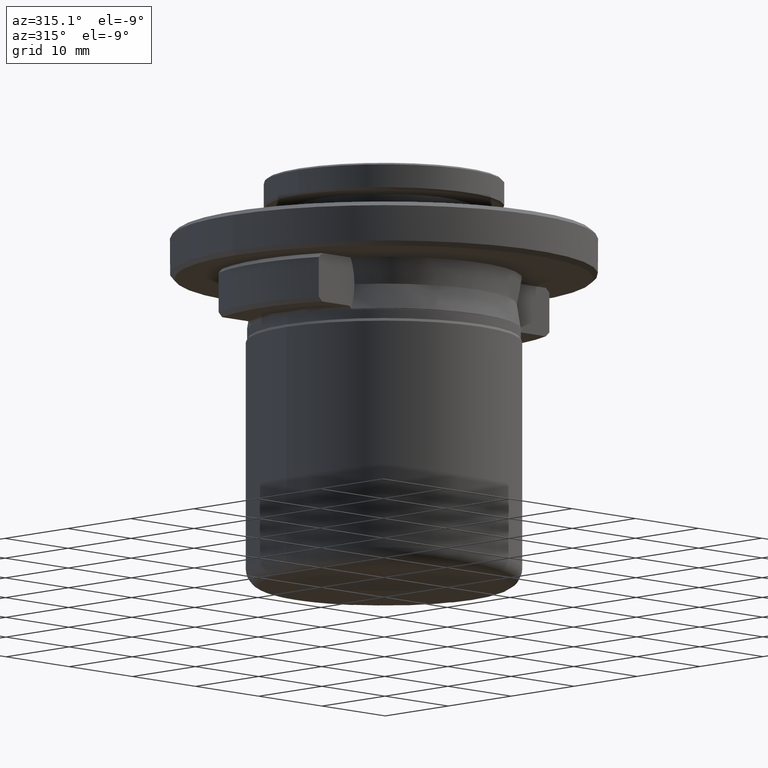
[diagram: clean part render]
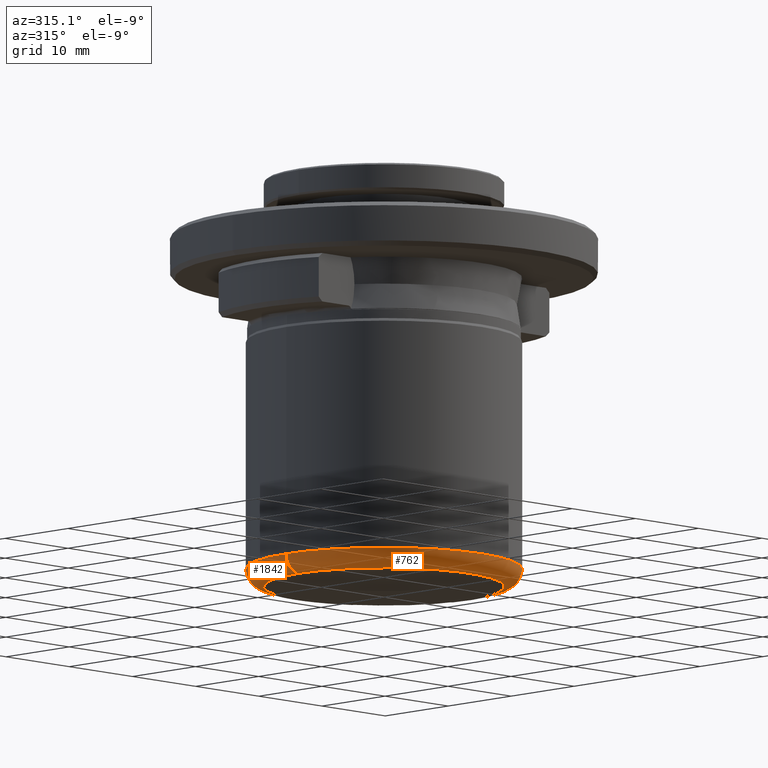
[diagram: same view with one multi-face feature highlighted, each face labeled with its STEP entity id]
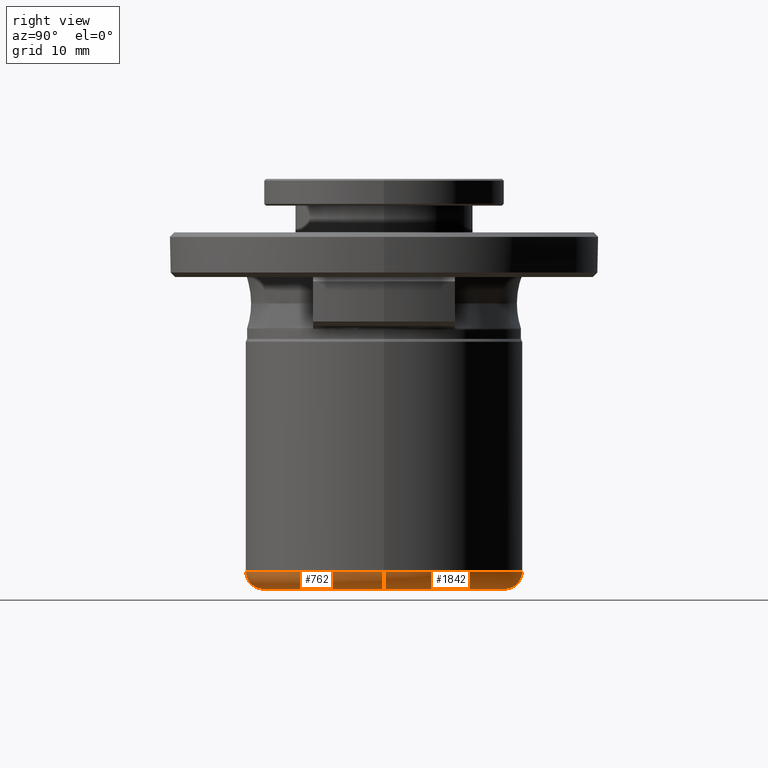
[diagram: same view with one multi-face feature highlighted, each face labeled with its STEP entity id]
A machine part, auxiliary view. The highlighted faces form ONE feature: a constant-radius fillet chain: 2 tangent blend faces with common blend radius 2 mm. The faces share edges in the B-rep.
A second angle (right view) of the same feature is appended — it is thin or edge-on in the first view.
Their STEP definitions:
[1] entity #1842 (Torus):
#15 = DIRECTION ( 'NONE',  ( 0.0000000000000000000, 0.0000000000000000000, -1.000000000000000000 ) ) ;
#41 = AXIS2_PLACEMENT_3D ( 'NONE', #300, #1973, #460 ) ;
#53 = VERTEX_POINT ( 'NONE', #872 ) ;
#91 = CARTESIAN_POINT ( 'NONE',  ( -13.50000000000000000, 1.653273178848926900E-015, -25.56151438499999900 ) ) ;
#95 = DIRECTION ( 'NONE',  ( 1.224646799147353200E-016, 1.000000000000000000, -0.0000000000000000000 ) ) ;
#110 = CIRCLE ( 'NONE', #813, 13.50000000000000000 ) ;
#128 = CIRCLE ( 'NONE', #1796, 2.000000000000001800 ) ;
#146 = TOROIDAL_SURFACE ( 'NONE', #41, 13.50000000000000000, 2.000000000000000000 ) ;
#200 = CARTESIAN_POINT ( 'NONE',  ( 13.50000000000000000, 0.0000000000000000000, -25.56151438499999900 ) ) ;
#227 = CARTESIAN_POINT ( 'NONE',  ( 0.0000000000000000000, 0.0000000000000000000, -25.56151438499999900 ) ) ;
#229 = EDGE_CURVE ( 'NONE', #53, #1976, #110, .T. ) ;
#236 = CARTESIAN_POINT ( 'NONE',  ( 15.50000000000000000, 0.0000000000000000000, -25.56151438499999900 ) ) ;
#300 = CARTESIAN_POINT ( 'NONE',  ( 0.0000000000000000000, 0.0000000000000000000, -25.56151438499999900 ) ) ;
#460 = DIRECTION ( 'NONE',  ( 1.000000000000000000, 0.0000000000000000000, 0.0000000000000000000 ) ) ;
#486 = VERTEX_POINT ( 'NONE', #236 ) ;
#573 = EDGE_CURVE ( 'NONE', #1976, #486, #128, .T. ) ;
#593 = AXIS2_PLACEMENT_3D ( 'NONE', #91, #95, #1335 ) ;
#813 = AXIS2_PLACEMENT_3D ( 'NONE', #1406, #1581, #1725 ) ;
#865 = DIRECTION ( 'NONE',  ( 0.0000000000000000000, 0.0000000000000000000, 1.000000000000000000 ) ) ;
#872 = CARTESIAN_POINT ( 'NONE',  ( -13.50000000000000000, 1.775737858763662000E-015, -27.56151438499999900 ) ) ;
#882 = DIRECTION ( 'NONE',  ( 0.0000000000000000000, -1.000000000000000000, 0.0000000000000000000 ) ) ;
#915 = EDGE_CURVE ( 'NONE', #53, #1931, #1537, .T. ) ;
#1034 = EDGE_CURVE ( 'NONE', #486, #1931, #1388, .T. ) ;
#1035 = ORIENTED_EDGE ( 'NONE', *, *, #229, .F. ) ;
#1060 = ORIENTED_EDGE ( 'NONE', *, *, #1034, .F. ) ;
#1074 = CARTESIAN_POINT ( 'NONE',  ( -15.50000000000000000, 1.898202538678397600E-015, -25.56151438499999900 ) ) ;
#1125 = EDGE_LOOP ( 'NONE', ( #1035, #1664, #1060, #1190 ) ) ;
#1190 = ORIENTED_EDGE ( 'NONE', *, *, #573, .F. ) ;
#1307 = FACE_OUTER_BOUND ( 'NONE', #1125, .T. ) ;
#1335 = DIRECTION ( 'NONE',  ( -1.000000000000000000, 1.224646799147353500E-016, 0.0000000000000000000 ) ) ;
#1388 = CIRCLE ( 'NONE', #1618, 15.50000000000000000 ) ;
#1406 = CARTESIAN_POINT ( 'NONE',  ( 0.0000000000000000000, 0.0000000000000000000, -27.56151438499999900 ) ) ;
#1537 = CIRCLE ( 'NONE', #593, 2.000000000000000000 ) ;
#1543 = CARTESIAN_POINT ( 'NONE',  ( 13.50000000000000000, 0.0000000000000000000, -27.56151438499999900 ) ) ;
#1581 = DIRECTION ( 'NONE',  ( -0.0000000000000000000, -0.0000000000000000000, -1.000000000000000000 ) ) ;
#1618 = AXIS2_PLACEMENT_3D ( 'NONE', #227, #865, #1732 ) ;
#1664 = ORIENTED_EDGE ( 'NONE', *, *, #915, .T. ) ;
#1725 = DIRECTION ( 'NONE',  ( 1.000000000000000000, 0.0000000000000000000, 0.0000000000000000000 ) ) ;
#1732 = DIRECTION ( 'NONE',  ( 1.000000000000000000, 0.0000000000000000000, 0.0000000000000000000 ) ) ;
#1796 = AXIS2_PLACEMENT_3D ( 'NONE', #200, #882, #15 ) ;
#1842 = ADVANCED_FACE ( 'NONE', ( #1307 ), #146, .T. ) ;
#1931 = VERTEX_POINT ( 'NONE', #1074 ) ;
#1973 = DIRECTION ( 'NONE',  ( 0.0000000000000000000, 0.0000000000000000000, 1.000000000000000000 ) ) ;
#1976 = VERTEX_POINT ( 'NONE', #1543 ) ;
[2] entity #762 (Torus):
#15 = DIRECTION ( 'NONE',  ( 0.0000000000000000000, 0.0000000000000000000, -1.000000000000000000 ) ) ;
#53 = VERTEX_POINT ( 'NONE', #872 ) ;
#91 = CARTESIAN_POINT ( 'NONE',  ( -13.50000000000000000, 1.653273178848926900E-015, -25.56151438499999900 ) ) ;
#95 = DIRECTION ( 'NONE',  ( 1.224646799147353200E-016, 1.000000000000000000, -0.0000000000000000000 ) ) ;
#128 = CIRCLE ( 'NONE', #1796, 2.000000000000001800 ) ;
#158 = EDGE_CURVE ( 'NONE', #1976, #53, #1322, .T. ) ;
#200 = CARTESIAN_POINT ( 'NONE',  ( 13.50000000000000000, 0.0000000000000000000, -25.56151438499999900 ) ) ;
#236 = CARTESIAN_POINT ( 'NONE',  ( 15.50000000000000000, 0.0000000000000000000, -25.56151438499999900 ) ) ;
#255 = FACE_OUTER_BOUND ( 'NONE', #1111, .T. ) ;
#260 = DIRECTION ( 'NONE',  ( 0.0000000000000000000, 0.0000000000000000000, 1.000000000000000000 ) ) ;
#311 = CARTESIAN_POINT ( 'NONE',  ( 0.0000000000000000000, 0.0000000000000000000, -25.56151438499999900 ) ) ;
#330 = ORIENTED_EDGE ( 'NONE', *, *, #158, .F. ) ;
#465 = DIRECTION ( 'NONE',  ( 1.000000000000000000, 0.0000000000000000000, 0.0000000000000000000 ) ) ;
#486 = VERTEX_POINT ( 'NONE', #236 ) ;
#547 = AXIS2_PLACEMENT_3D ( 'NONE', #311, #1367, #465 ) ;
#573 = EDGE_CURVE ( 'NONE', #1976, #486, #128, .T. ) ;
#593 = AXIS2_PLACEMENT_3D ( 'NONE', #91, #95, #1335 ) ;
#762 = ADVANCED_FACE ( 'NONE', ( #255 ), #961, .T. ) ;
#860 = ORIENTED_EDGE ( 'NONE', *, *, #1881, .F. ) ;
#872 = CARTESIAN_POINT ( 'NONE',  ( -13.50000000000000000, 1.775737858763662000E-015, -27.56151438499999900 ) ) ;
#882 = DIRECTION ( 'NONE',  ( 0.0000000000000000000, -1.000000000000000000, 0.0000000000000000000 ) ) ;
#915 = EDGE_CURVE ( 'NONE', #53, #1931, #1537, .T. ) ;
#961 = TOROIDAL_SURFACE ( 'NONE', #1143, 13.50000000000000000, 2.000000000000000000 ) ;
#1074 = CARTESIAN_POINT ( 'NONE',  ( -15.50000000000000000, 1.898202538678397600E-015, -25.56151438499999900 ) ) ;
#1105 = DIRECTION ( 'NONE',  ( -0.0000000000000000000, -0.0000000000000000000, -1.000000000000000000 ) ) ;
#1111 = EDGE_LOOP ( 'NONE', ( #1470, #330, #1609, #860 ) ) ;
#1143 = AXIS2_PLACEMENT_3D ( 'NONE', #1638, #260, #1841 ) ;
#1322 = CIRCLE ( 'NONE', #1873, 13.50000000000000000 ) ;
#1335 = DIRECTION ( 'NONE',  ( -1.000000000000000000, 1.224646799147353500E-016, 0.0000000000000000000 ) ) ;
#1367 = DIRECTION ( 'NONE',  ( 0.0000000000000000000, 0.0000000000000000000, 1.000000000000000000 ) ) ;
#1470 = ORIENTED_EDGE ( 'NONE', *, *, #915, .F. ) ;
#1537 = CIRCLE ( 'NONE', #593, 2.000000000000000000 ) ;
#1543 = CARTESIAN_POINT ( 'NONE',  ( 13.50000000000000000, 0.0000000000000000000, -27.56151438499999900 ) ) ;
#1560 = DIRECTION ( 'NONE',  ( 1.000000000000000000, 0.0000000000000000000, 0.0000000000000000000 ) ) ;
#1609 = ORIENTED_EDGE ( 'NONE', *, *, #573, .T. ) ;
#1638 = CARTESIAN_POINT ( 'NONE',  ( 0.0000000000000000000, 0.0000000000000000000, -25.56151438499999900 ) ) ;
#1655 = CIRCLE ( 'NONE', #547, 15.50000000000000000 ) ;
#1796 = AXIS2_PLACEMENT_3D ( 'NONE', #200, #882, #15 ) ;
#1841 = DIRECTION ( 'NONE',  ( 1.000000000000000000, 0.0000000000000000000, 0.0000000000000000000 ) ) ;
#1862 = CARTESIAN_POINT ( 'NONE',  ( 0.0000000000000000000, 0.0000000000000000000, -27.56151438499999900 ) ) ;
#1873 = AXIS2_PLACEMENT_3D ( 'NONE', #1862, #1105, #1560 ) ;
#1881 = EDGE_CURVE ( 'NONE', #1931, #486, #1655, .T. ) ;
#1931 = VERTEX_POINT ( 'NONE', #1074 ) ;
#1976 = VERTEX_POINT ( 'NONE', #1543 ) ;